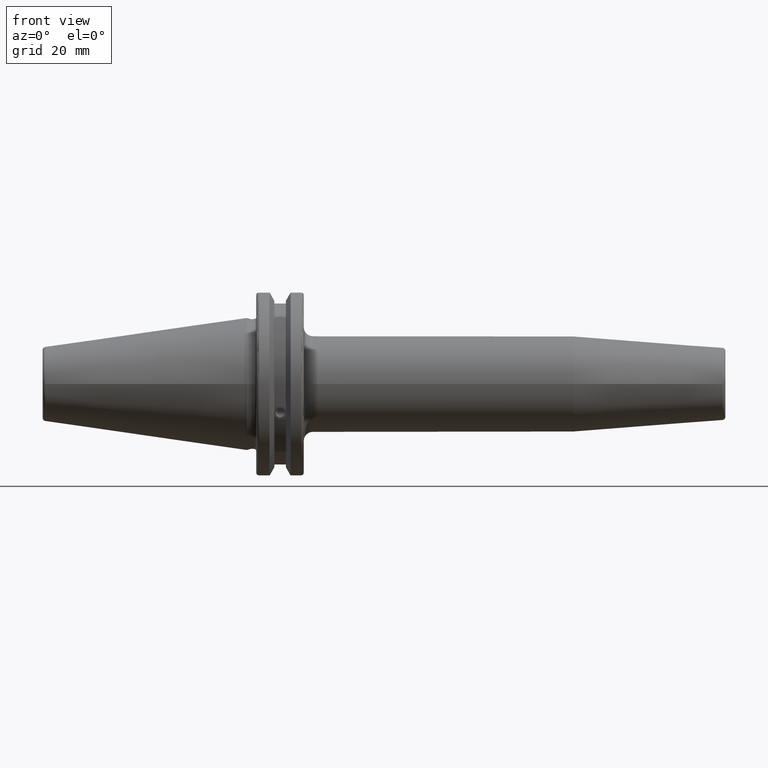
[diagram: clean part render]
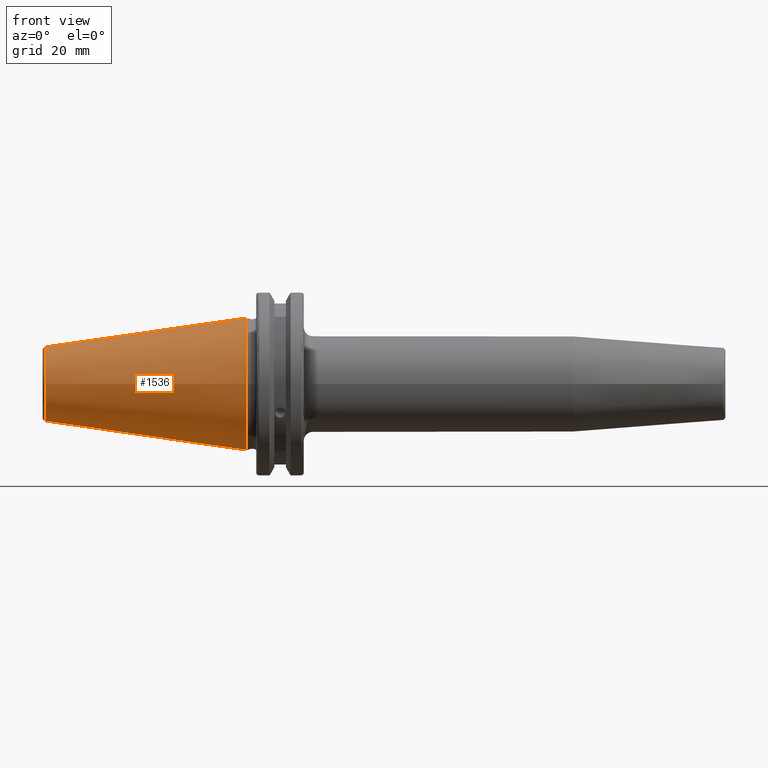
[diagram: same view with one face highlighted and labeled with its STEP entity id]
A machine part, front view. The second image highlights one B-rep face of the part: STEP entity #1536.
In plain terms, the highlighted conical surface has half-angle 8.297 deg.
Its self-contained STEP definition (entity closure, byte-faithful):
#235=LINE('',#2918,#329);
#329=VECTOR('',#2120,17.2484375);
#356=CONICAL_SURFACE('',#1725,17.2484375,0.144812498238939);
#420=FACE_OUTER_BOUND('',#521,.T.);
#521=EDGE_LOOP('',(#1338,#1339,#1340,#1341,#1342));
#608=CIRCLE('',#1719,12.3966635780937);
#609=CIRCLE('',#1720,12.3966635780937);
#613=CIRCLE('',#1726,22.225);
#762=VERTEX_POINT('',#2905);
#763=VERTEX_POINT('',#2906);
#766=VERTEX_POINT('',#2916);
#969=EDGE_CURVE('',#762,#763,#608,.T.);
#970=EDGE_CURVE('',#763,#762,#609,.T.);
#974=EDGE_CURVE('',#766,#766,#613,.T.);
#975=EDGE_CURVE('',#766,#763,#235,.T.);
#1338=ORIENTED_EDGE('',*,*,#974,.F.);
#1339=ORIENTED_EDGE('',*,*,#975,.T.);
#1340=ORIENTED_EDGE('',*,*,#969,.F.);
#1341=ORIENTED_EDGE('',*,*,#970,.F.);
#1342=ORIENTED_EDGE('',*,*,#975,.F.);
#1536=ADVANCED_FACE('',(#420),#356,.T.);
#1719=AXIS2_PLACEMENT_3D('',#2907,#2104,#2105);
#1720=AXIS2_PLACEMENT_3D('',#2908,#2106,#2107);
#1725=AXIS2_PLACEMENT_3D('',#2915,#2116,#2117);
#1726=AXIS2_PLACEMENT_3D('',#2917,#2118,#2119);
#2104=DIRECTION('center_axis',(-1.,0.,0.));
#2105=DIRECTION('ref_axis',(0.,-1.,3.06161699786838E-17));
#2106=DIRECTION('center_axis',(-1.,0.,0.));
#2107=DIRECTION('ref_axis',(0.,-1.,3.06161699786838E-17));
#2116=DIRECTION('center_axis',(1.,0.,0.));
#2117=DIRECTION('ref_axis',(0.,1.,0.));
#2118=DIRECTION('center_axis',(1.,0.,0.));
#2119=DIRECTION('ref_axis',(0.,0.,-1.));
#2120=DIRECTION('',(-0.989532981063282,0.144306893071729,1.76724974695192E-17));
#2905=CARTESIAN_POINT('',(-67.3943068930717,-1.5181534371019E-15,12.3966635780937));
#2906=CARTESIAN_POINT('',(-67.3943068930718,-12.3966635780937,-1.5181534371019E-15));
#2907=CARTESIAN_POINT('Origin',(-67.3943068930717,0.,-1.89769179637738E-15));
#2908=CARTESIAN_POINT('Origin',(-67.3943068930717,0.,-1.89769179637738E-15));
#2915=CARTESIAN_POINT('Origin',(-34.125,0.,0.));
#2916=CARTESIAN_POINT('',(0.,-22.225,-2.72177751110499E-15));
#2917=CARTESIAN_POINT('Origin',(0.,0.,0.));
#2918=CARTESIAN_POINT('',(-34.125,-17.2484375,-2.11232437746682E-15));